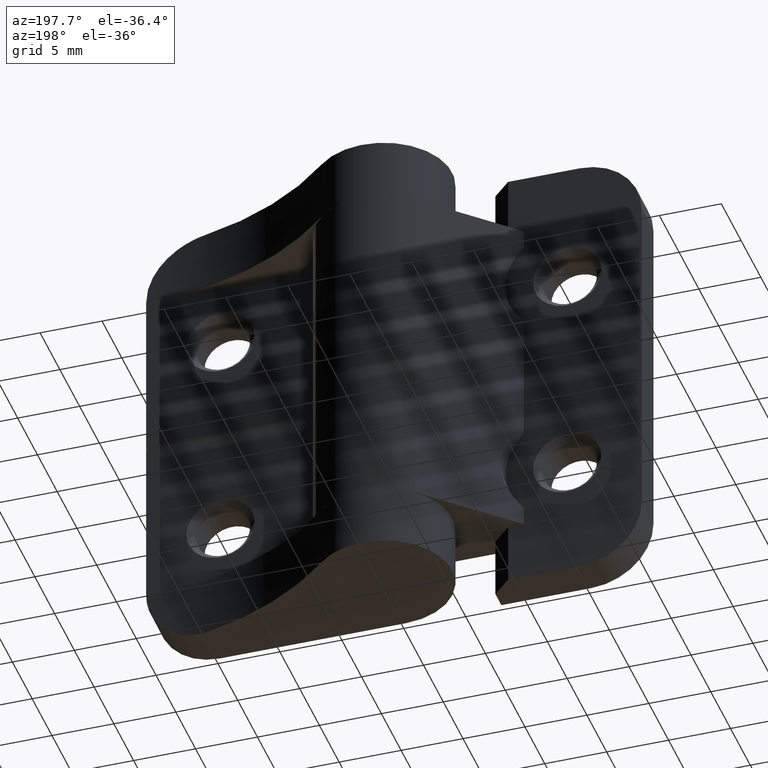
[diagram: clean part render]
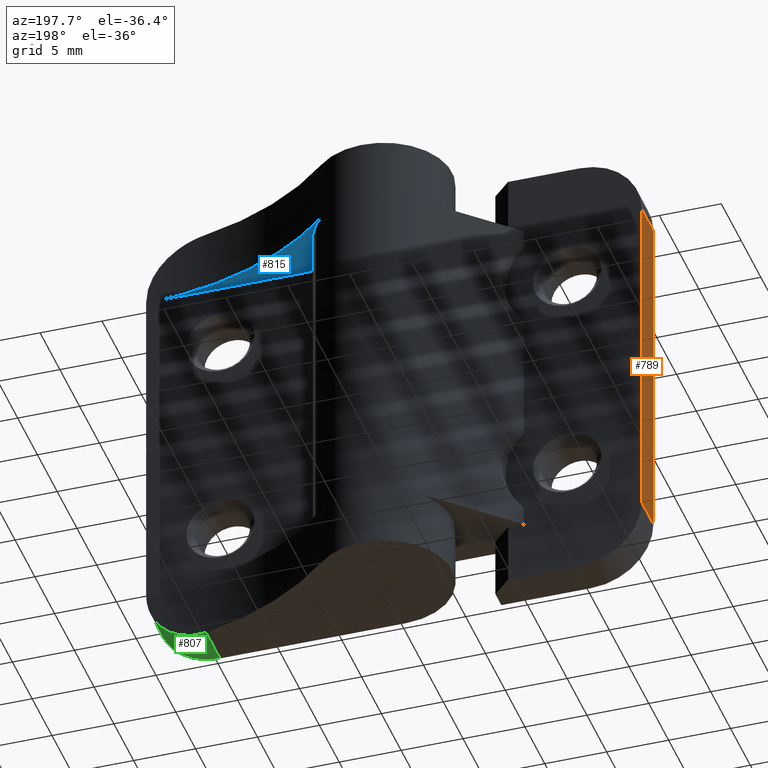
[diagram: same view with three faces highlighted in distinct colors, each labeled with its STEP entity id]
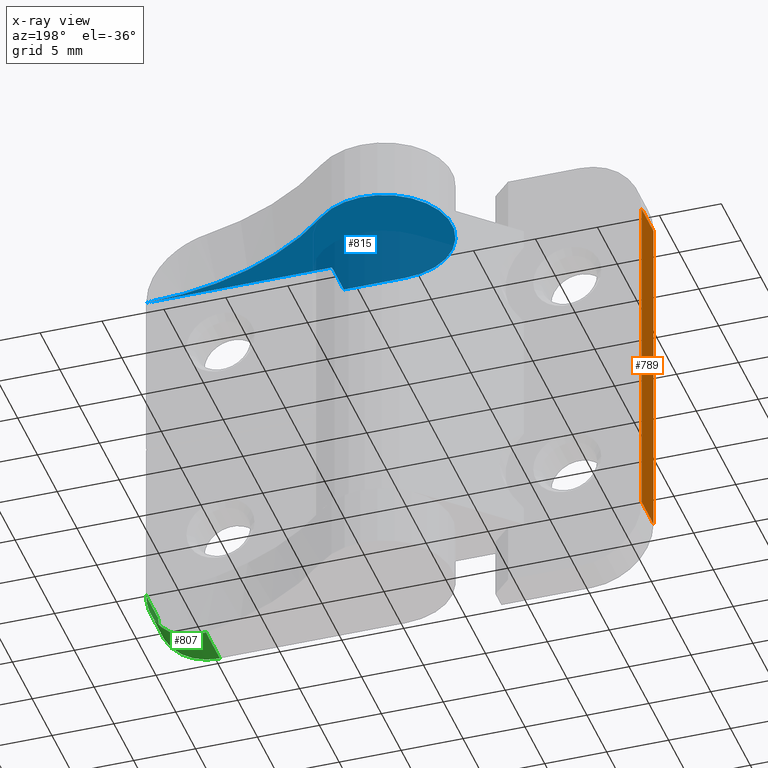
[diagram: x-ray of the same camera — body ghosted, the three highlighted faces saturated]
A machine part, auxiliary view with three faces highlighted in distinct colors.
The next image is the same camera in x-ray (body ghosted, the three faces saturated) — at least one of them is partly hidden behind the body in this view.
Their STEP definitions:

[orange] entity #789 — the highlighted planar face has unit normal (-1, 0, 0).
#58=LINE('',#1178,#131);
#65=LINE('',#1210,#138);
#66=LINE('',#1213,#139);
#74=LINE('',#1230,#147);
#131=VECTOR('',#936,28.);
#138=VECTOR('',#969,3.);
#139=VECTOR('',#972,28.);
#147=VECTOR('',#984,3.);
#202=PLANE('',#854);
#237=FACE_OUTER_BOUND('',#292,.T.);
#292=EDGE_LOOP('',(#595,#596,#597,#598));
#378=VERTEX_POINT('',#1175);
#379=VERTEX_POINT('',#1177);
#390=VERTEX_POINT('',#1206);
#392=VERTEX_POINT('',#1212);
#453=EDGE_CURVE('',#378,#379,#58,.T.);
#468=EDGE_CURVE('',#379,#390,#65,.T.);
#469=EDGE_CURVE('',#392,#390,#66,.T.);
#478=EDGE_CURVE('',#392,#378,#74,.T.);
#595=ORIENTED_EDGE('',*,*,#468,.F.);
#596=ORIENTED_EDGE('',*,*,#453,.F.);
#597=ORIENTED_EDGE('',*,*,#478,.F.);
#598=ORIENTED_EDGE('',*,*,#469,.T.);
#789=ADVANCED_FACE('',(#237),#202,.T.);
#854=AXIS2_PLACEMENT_3D('',#1229,#982,#983);
#936=DIRECTION('',(0.,0.,1.));
#969=DIRECTION('',(0.,-1.,0.));
#972=DIRECTION('',(0.,0.,1.));
#982=DIRECTION('center_axis',(-1.,0.,0.));
#983=DIRECTION('ref_axis',(0.,-1.,0.));
#984=DIRECTION('',(0.,1.,0.));
#1175=CARTESIAN_POINT('',(-20.,-2.50000000000001,-14.));
#1177=CARTESIAN_POINT('',(-20.,-2.50000000000001,14.));
#1178=CARTESIAN_POINT('',(-20.,-2.50000000000001,0.));
#1206=CARTESIAN_POINT('',(-20.,-5.50000000000001,14.));
#1210=CARTESIAN_POINT('',(-20.,-2.31385211939897,14.));
#1212=CARTESIAN_POINT('',(-20.,-5.50000000000001,-14.));
#1213=CARTESIAN_POINT('',(-20.,-5.50000000000001,0.));
#1229=CARTESIAN_POINT('Origin',(-20.,-2.50000000000001,0.));
#1230=CARTESIAN_POINT('',(-20.,-2.31385211939897,-14.));

[blue] entity #815 — the highlighted planar face has unit normal (0, 0, 1).
#110=LINE('',#1348,#183);
#111=LINE('',#1350,#184);
#112=LINE('',#1352,#185);
#183=VECTOR('',#1100,15.);
#184=VECTOR('',#1101,3.);
#185=VECTOR('',#1102,5.);
#221=PLANE('',#893);
#263=FACE_OUTER_BOUND('',#322,.T.);
#322=EDGE_LOOP('',(#713,#714,#715,#716,#717));
#362=CIRCLE('',#894,23.5);
#363=CIRCLE('',#895,5.5);
#429=VERTEX_POINT('',#1344);
#430=VERTEX_POINT('',#1345);
#431=VERTEX_POINT('',#1347);
#432=VERTEX_POINT('',#1349);
#433=VERTEX_POINT('',#1351);
#527=EDGE_CURVE('',#429,#430,#362,.T.);
#528=EDGE_CURVE('',#431,#429,#110,.T.);
#529=EDGE_CURVE('',#431,#432,#111,.T.);
#530=EDGE_CURVE('',#433,#432,#112,.T.);
#531=EDGE_CURVE('',#430,#433,#363,.T.);
#713=ORIENTED_EDGE('',*,*,#527,.F.);
#714=ORIENTED_EDGE('',*,*,#528,.F.);
#715=ORIENTED_EDGE('',*,*,#529,.T.);
#716=ORIENTED_EDGE('',*,*,#530,.F.);
#717=ORIENTED_EDGE('',*,*,#531,.F.);
#815=ADVANCED_FACE('',(#263),#221,.F.);
#893=AXIS2_PLACEMENT_3D('',#1343,#1096,#1097);
#894=AXIS2_PLACEMENT_3D('',#1346,#1098,#1099);
#895=AXIS2_PLACEMENT_3D('',#1353,#1103,#1104);
#1096=DIRECTION('center_axis',(3.09426989639187E-16,0.,1.));
#1097=DIRECTION('ref_axis',(1.,0.,0.));
#1098=DIRECTION('center_axis',(-3.09426989639187E-16,0.,-1.));
#1099=DIRECTION('ref_axis',(-0.689655172413793,-0.724137931034483,2.13397923889094E-16));
#1100=DIRECTION('',(1.,0.,-3.09426989639187E-16));
#1101=DIRECTION('',(0.,-1.,0.));
#1102=DIRECTION('',(1.,0.,0.));
#1103=DIRECTION('center_axis',(3.09426989639187E-16,0.,1.));
#1104=DIRECTION('ref_axis',(-0.689655172413793,-0.724137931034483,2.13397923889094E-16));
#1343=CARTESIAN_POINT('Origin',(-29.1624420147403,-2.5,14.));
#1344=CARTESIAN_POINT('',(20.,-2.5,14.));
#1345=CARTESIAN_POINT('',(3.79310344827586,3.98275862068965,14.));
#1346=CARTESIAN_POINT('Origin',(20.,21.,14.));
#1347=CARTESIAN_POINT('',(5.,-2.5,14.));
#1348=CARTESIAN_POINT('',(-29.1624420147403,-2.5,14.));
#1349=CARTESIAN_POINT('',(5.,-5.5,14.));
#1350=CARTESIAN_POINT('',(5.,-2.5,14.));
#1351=CARTESIAN_POINT('',(0.,-5.5,14.));
#1352=CARTESIAN_POINT('',(2.5,-5.5,14.));
#1353=CARTESIAN_POINT('Origin',(0.,0.,14.));

[green] entity #807 — the highlighted cylindrical surface (partial cylindrical patch) has radius 5 mm, axis along (0, -1, 0).
#22=B_SPLINE_CURVE_WITH_KNOTS('',3,(#1307,#1308,#1309,#1310,#1311,#1312,
#1313,#1314,#1315,#1316),.UNSPECIFIED.,.F.,.F.,(4,2,2,2,4),(-0.757145459144854,
-0.566973208028317,-0.37680095691178,-0.18840047845589,0.),
 .UNSPECIFIED.);
#97=LINE('',#1284,#170);
#103=LINE('',#1306,#176);
#170=VECTOR('',#1041,3.);
#176=VECTOR('',#1063,3.53807499358993);
#255=FACE_OUTER_BOUND('',#313,.T.);
#313=EDGE_LOOP('',(#678,#679,#680,#681));
#352=CIRCLE('',#873,5.);
#412=VERTEX_POINT('',#1281);
#413=VERTEX_POINT('',#1283);
#417=VERTEX_POINT('',#1293);
#421=VERTEX_POINT('',#1305);
#503=EDGE_CURVE('',#413,#412,#97,.T.);
#509=EDGE_CURVE('',#412,#417,#352,.T.);
#513=EDGE_CURVE('',#417,#421,#103,.T.);
#514=EDGE_CURVE('',#421,#413,#22,.T.);
#678=ORIENTED_EDGE('',*,*,#509,.T.);
#679=ORIENTED_EDGE('',*,*,#513,.T.);
#680=ORIENTED_EDGE('',*,*,#514,.T.);
#681=ORIENTED_EDGE('',*,*,#503,.T.);
#773=CYLINDRICAL_SURFACE('',#879,5.);
#807=ADVANCED_FACE('',(#255),#773,.T.);
#873=AXIS2_PLACEMENT_3D('',#1295,#1049,#1050);
#879=AXIS2_PLACEMENT_3D('',#1304,#1061,#1062);
#1041=DIRECTION('',(0.,-1.,0.));
#1049=DIRECTION('center_axis',(0.,1.,0.));
#1050=DIRECTION('ref_axis',(0.707106781186548,0.,-0.707106781186548));
#1061=DIRECTION('center_axis',(0.,-1.,0.));
#1062=DIRECTION('ref_axis',(0.707106781186548,0.,-0.707106781186548));
#1063=DIRECTION('',(0.,1.,0.));
#1281=CARTESIAN_POINT('',(20.,-5.5,-14.));
#1283=CARTESIAN_POINT('',(20.,-2.5,-14.));
#1284=CARTESIAN_POINT('',(20.,-3.80054138416684,-14.));
#1293=CARTESIAN_POINT('',(15.,-5.5,-19.));
#1295=CARTESIAN_POINT('Origin',(15.,-5.5,-14.));
#1304=CARTESIAN_POINT('Origin',(15.,-3.80054138416684,-14.));
#1305=CARTESIAN_POINT('',(15.,-1.96192500641007,-19.));
#1306=CARTESIAN_POINT('',(15.,-3.80054138416684,-19.));
#1307=CARTESIAN_POINT('Ctrl Pts',(15.,-1.96192500641007,-19.));
#1308=CARTESIAN_POINT('Ctrl Pts',(15.6193930451685,-2.09679894337215,-19.));
#1309=CARTESIAN_POINT('Ctrl Pts',(16.2865492198939,-2.21309739017598,-18.8775243067932));
#1310=CARTESIAN_POINT('Ctrl Pts',(17.5208558572984,-2.37715661344602,-18.3692949613753));
#1311=CARTESIAN_POINT('Ctrl Pts',(18.0877298552572,-2.42636406165069,-17.9833379566082));
#1312=CARTESIAN_POINT('Ctrl Pts',(18.9791659127393,-2.48202449560006,-17.0919018991262));
#1313=CARTESIAN_POINT('Ctrl Pts',(19.364030502035,-2.49277954066755,-16.5297821035586));
#1314=CARTESIAN_POINT('Ctrl Pts',(19.8744444246523,-2.5010506880201,-15.2978256387486));
#1315=CARTESIAN_POINT('Ctrl Pts',(20.,-2.5,-14.628001594853));
#1316=CARTESIAN_POINT('Ctrl Pts',(20.,-2.5,-14.));